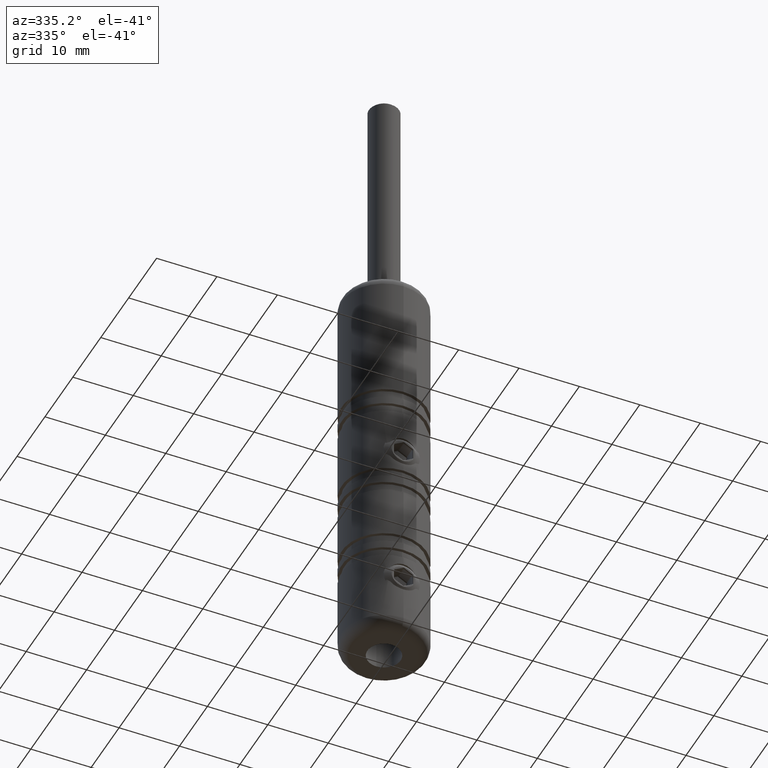
[diagram: clean part render]
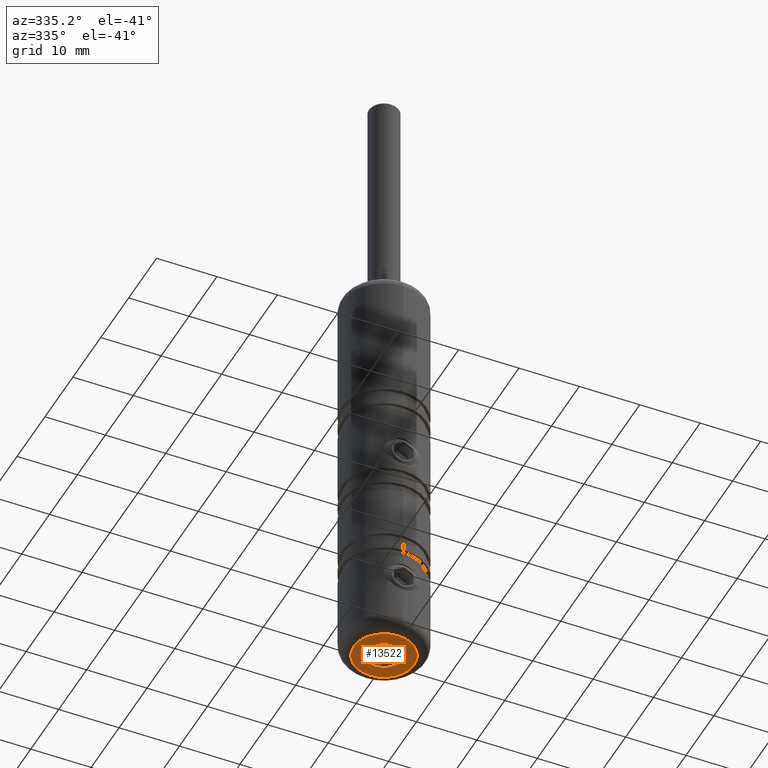
[diagram: same view with one face highlighted and labeled with its STEP entity id]
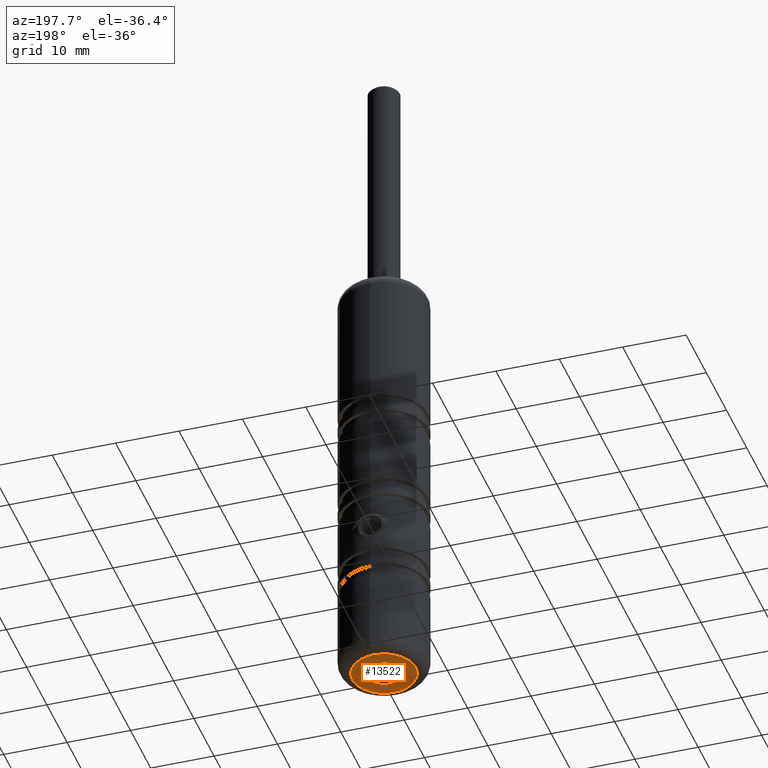
[diagram: same view with one face highlighted and labeled with its STEP entity id]
A machine part, auxiliary view. The second image highlights one B-rep face of the part: STEP entity #13522.
A second angle (auxiliary view) of the same face is appended — the face is thin or edge-on in the first view.
In plain terms, the highlighted planar face has unit normal (0, 0, 1).
Its self-contained STEP definition (entity closure, byte-faithful):
#101 = FACE_BOUND ( 'NONE', #14224, .T. ) ;
#258 = AXIS2_PLACEMENT_3D ( 'NONE', #13102, #7995, #6705 ) ;
#430 = ORIENTED_EDGE ( 'NONE', *, *, #16471, .T. ) ;
#593 = EDGE_LOOP ( 'NONE', ( #430, #3755 ) ) ;
#739 = AXIS2_PLACEMENT_3D ( 'NONE', #16344, #9641, #2323 ) ;
#928 = DIRECTION ( 'NONE',  ( 0.0000000000000000000, 1.000000000000000000, 0.0000000000000000000 ) ) ;
#1306 = DIRECTION ( 'NONE',  ( -0.0000000000000000000, 5.987083850887820200E-017, 1.000000000000000000 ) ) ;
#2323 = DIRECTION ( 'NONE',  ( 0.0000000000000000000, -1.000000000000000000, 0.0000000000000000000 ) ) ;
#2360 = VERTEX_POINT ( 'NONE', #8008 ) ;
#2419 = EDGE_CURVE ( 'NONE', #6141, #2360, #4940, .T. ) ;
#2712 = CARTESIAN_POINT ( 'NONE',  ( 3.367778697655221000E-016, -2.750000000000002200, -35.00000000000000000 ) ) ;
#3048 = CIRCLE ( 'NONE', #739, 4.999999999999992000 ) ;
#3656 = ORIENTED_EDGE ( 'NONE', *, *, #2419, .F. ) ;
#3755 = ORIENTED_EDGE ( 'NONE', *, *, #8342, .T. ) ;
#3908 = PLANE ( 'NONE',  #7249 ) ;
#4940 = CIRCLE ( 'NONE', #258, 2.750000000000000000 ) ;
#6141 = VERTEX_POINT ( 'NONE', #2712 ) ;
#6705 = DIRECTION ( 'NONE',  ( 0.0000000000000000000, 1.000000000000000000, 0.0000000000000000000 ) ) ;
#7005 = EDGE_CURVE ( 'NONE', #2360, #6141, #8529, .T. ) ;
#7196 = DIRECTION ( 'NONE',  ( 0.0000000000000000000, -5.987083850887820200E-017, -1.000000000000000000 ) ) ;
#7249 = AXIS2_PLACEMENT_3D ( 'NONE', #10346, #1306, #13012 ) ;
#7860 = CARTESIAN_POINT ( 'NONE',  ( 0.0000000000000000000, -4.999999999999996400, -35.00000000000000000 ) ) ;
#7936 = CIRCLE ( 'NONE', #16246, 4.999999999999992000 ) ;
#7995 = DIRECTION ( 'NONE',  ( 0.0000000000000000000, 6.123233995736768500E-017, -1.000000000000000000 ) ) ;
#8008 = CARTESIAN_POINT ( 'NONE',  ( 0.0000000000000000000, 2.749999999999997800, -35.00000000000000000 ) ) ;
#8342 = EDGE_CURVE ( 'NONE', #12723, #16071, #3048, .T. ) ;
#8529 = CIRCLE ( 'NONE', #9628, 2.750000000000000000 ) ;
#8553 = CARTESIAN_POINT ( 'NONE',  ( 0.0000000000000000000, -4.190958695621474900E-015, -35.00000000000000000 ) ) ;
#9628 = AXIS2_PLACEMENT_3D ( 'NONE', #13899, #12568, #928 ) ;
#9641 = DIRECTION ( 'NONE',  ( 0.0000000000000000000, -5.987083850887820200E-017, -1.000000000000000000 ) ) ;
#10346 = CARTESIAN_POINT ( 'NONE',  ( 0.0000000000000000000, -4.190958695621474100E-015, -35.00000000000000000 ) ) ;
#11087 = FACE_OUTER_BOUND ( 'NONE', #593, .T. ) ;
#12568 = DIRECTION ( 'NONE',  ( 0.0000000000000000000, 6.123233995736768500E-017, -1.000000000000000000 ) ) ;
#12723 = VERTEX_POINT ( 'NONE', #12747 ) ;
#12747 = CARTESIAN_POINT ( 'NONE',  ( 7.347880794884109900E-016, 4.999999999999987600, -35.00000000000000000 ) ) ;
#13012 = DIRECTION ( 'NONE',  ( 0.0000000000000000000, -1.000000000000000000, 5.987083850887820200E-017 ) ) ;
#13102 = CARTESIAN_POINT ( 'NONE',  ( 0.0000000000000000000, -2.095479347810736700E-015, -35.00000000000000000 ) ) ;
#13435 = ORIENTED_EDGE ( 'NONE', *, *, #7005, .F. ) ;
#13522 = ADVANCED_FACE ( 'NONE', ( #101, #11087 ), #3908, .F. ) ;
#13654 = DIRECTION ( 'NONE',  ( 0.0000000000000000000, -1.000000000000000000, 0.0000000000000000000 ) ) ;
#13899 = CARTESIAN_POINT ( 'NONE',  ( 0.0000000000000000000, -2.095479347810736700E-015, -35.00000000000000000 ) ) ;
#14224 = EDGE_LOOP ( 'NONE', ( #13435, #3656 ) ) ;
#16071 = VERTEX_POINT ( 'NONE', #7860 ) ;
#16246 = AXIS2_PLACEMENT_3D ( 'NONE', #8553, #7196, #13654 ) ;
#16344 = CARTESIAN_POINT ( 'NONE',  ( 0.0000000000000000000, -4.190958695621474900E-015, -35.00000000000000000 ) ) ;
#16471 = EDGE_CURVE ( 'NONE', #16071, #12723, #7936, .T. ) ;